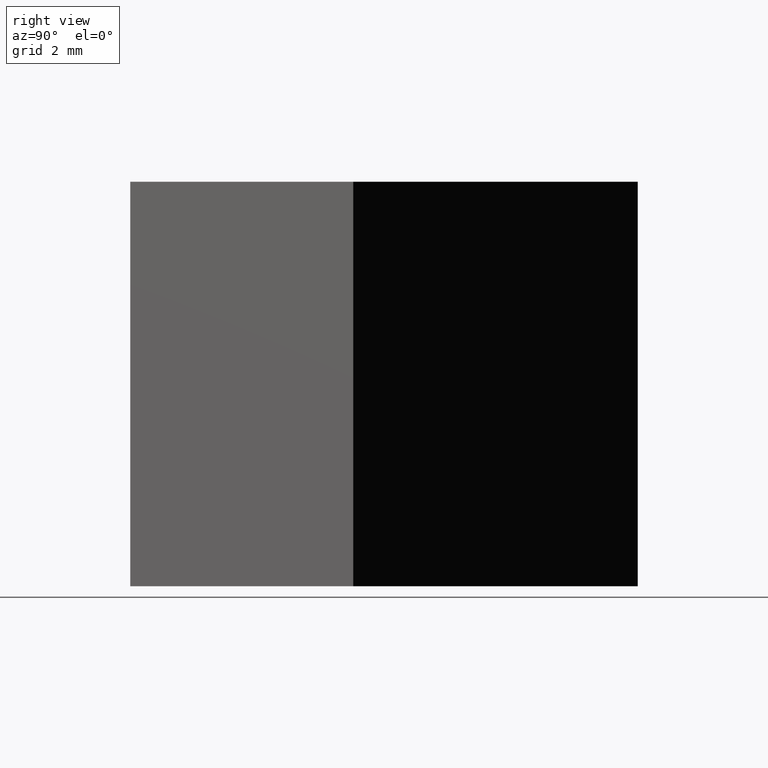
[diagram: clean part render]
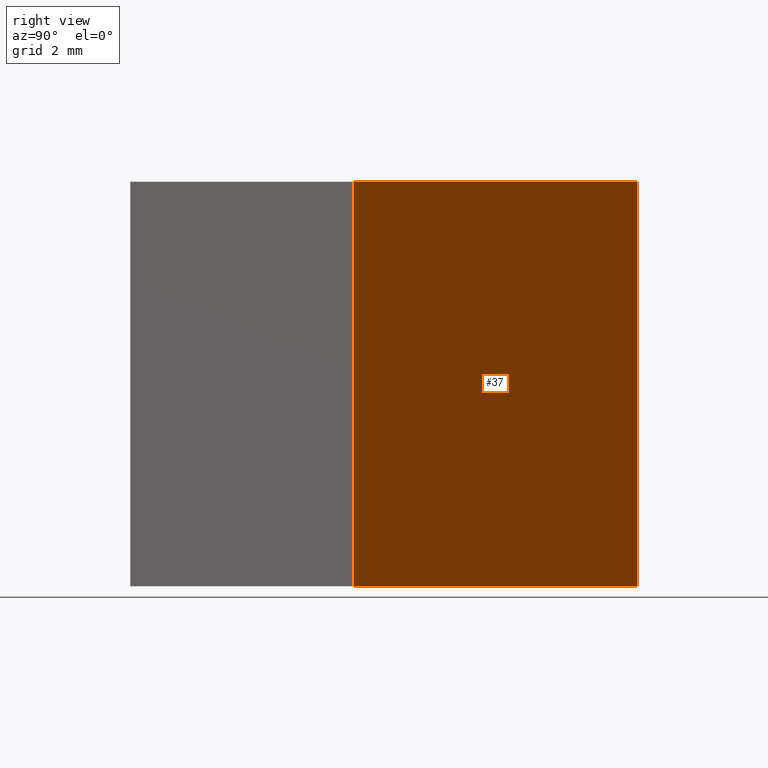
[diagram: same view with one face highlighted and labeled with its STEP entity id]
A machine part, right view. The second image highlights one B-rep face of the part: STEP entity #37.
In plain terms, the highlighted planar face has unit normal (-0.7032, -0.711, 0).
Its self-contained STEP definition (entity closure, byte-faithful):
#3 = CARTESIAN_POINT ( 'NONE',  ( 11.11417082101136700, 7.739990180066555100, 0.0000000000000000000 ) ) ;
#16 = CARTESIAN_POINT ( 'NONE',  ( 2.227010525918083200, 16.53023374263736000, 12.50000000000000000 ) ) ;
#17 = DIRECTION ( 'NONE',  ( -0.7109728236074626100, 0.7032194850056644500, 0.0000000000000000000 ) ) ;
#18 = CARTESIAN_POINT ( 'NONE',  ( 11.11417082101136700, 7.739990180066555100, 12.50000000000000000 ) ) ;
#19 = CARTESIAN_POINT ( 'NONE',  ( 11.11417082101136700, 7.739990180066555100, 12.50000000000000000 ) ) ;
#20 = ORIENTED_EDGE ( 'NONE', *, *, #107, .T. ) ;
#28 = CARTESIAN_POINT ( 'NONE',  ( 2.227010525918083200, 16.53023374263736000, 0.0000000000000000000 ) ) ;
#29 = VERTEX_POINT ( 'NONE', #127 ) ;
#33 = FACE_OUTER_BOUND ( 'NONE', #110, .T. ) ;
#35 = VERTEX_POINT ( 'NONE', #120 ) ;
#37 = ADVANCED_FACE ( 'NONE', ( #33 ), #95, .F. ) ;
#41 = VERTEX_POINT ( 'NONE', #28 ) ;
#46 = VERTEX_POINT ( 'NONE', #66 ) ;
#48 = VECTOR ( 'NONE', #17, 1000.000000000000000 ) ;
#57 = LINE ( 'NONE', #125, #89 ) ;
#66 = CARTESIAN_POINT ( 'NONE',  ( 11.11417082101136700, 7.739990180066555100, 0.0000000000000000000 ) ) ;
#69 = EDGE_CURVE ( 'NONE', #46, #41, #108, .T. ) ;
#72 = DIRECTION ( 'NONE',  ( -0.7032194850056644500, -0.7109728236074626100, 0.0000000000000000000 ) ) ;
#73 = DIRECTION ( 'NONE',  ( -0.0000000000000000000, -0.0000000000000000000, -1.000000000000000000 ) ) ;
#77 = VECTOR ( 'NONE', #73, 1000.000000000000000 ) ;
#79 = EDGE_CURVE ( 'NONE', #35, #29, #57, .T. ) ;
#89 = VECTOR ( 'NONE', #140, 1000.000000000000000 ) ;
#95 = PLANE ( 'NONE',  #117 ) ;
#103 = DIRECTION ( 'NONE',  ( 0.7109728236074626100, -0.7032194850056644500, 0.0000000000000000000 ) ) ;
#107 = EDGE_CURVE ( 'NONE', #35, #46, #146, .T. ) ;
#108 = LINE ( 'NONE', #3, #48 ) ;
#109 = LINE ( 'NONE', #16, #136 ) ;
#110 = EDGE_LOOP ( 'NONE', ( #169, #138, #151, #20 ) ) ;
#117 = AXIS2_PLACEMENT_3D ( 'NONE', #19, #72, #103 ) ;
#120 = CARTESIAN_POINT ( 'NONE',  ( 11.11417082101136700, 7.739990180066555100, 12.50000000000000000 ) ) ;
#125 = CARTESIAN_POINT ( 'NONE',  ( 11.11417082101136700, 7.739990180066555100, 12.50000000000000000 ) ) ;
#127 = CARTESIAN_POINT ( 'NONE',  ( 2.227010525918083200, 16.53023374263736000, 12.50000000000000000 ) ) ;
#136 = VECTOR ( 'NONE', #144, 1000.000000000000000 ) ;
#138 = ORIENTED_EDGE ( 'NONE', *, *, #139, .F. ) ;
#139 = EDGE_CURVE ( 'NONE', #29, #41, #109, .T. ) ;
#140 = DIRECTION ( 'NONE',  ( -0.7109728236074626100, 0.7032194850056644500, 0.0000000000000000000 ) ) ;
#144 = DIRECTION ( 'NONE',  ( -0.0000000000000000000, -0.0000000000000000000, -1.000000000000000000 ) ) ;
#146 = LINE ( 'NONE', #18, #77 ) ;
#151 = ORIENTED_EDGE ( 'NONE', *, *, #79, .F. ) ;
#169 = ORIENTED_EDGE ( 'NONE', *, *, #69, .T. ) ;